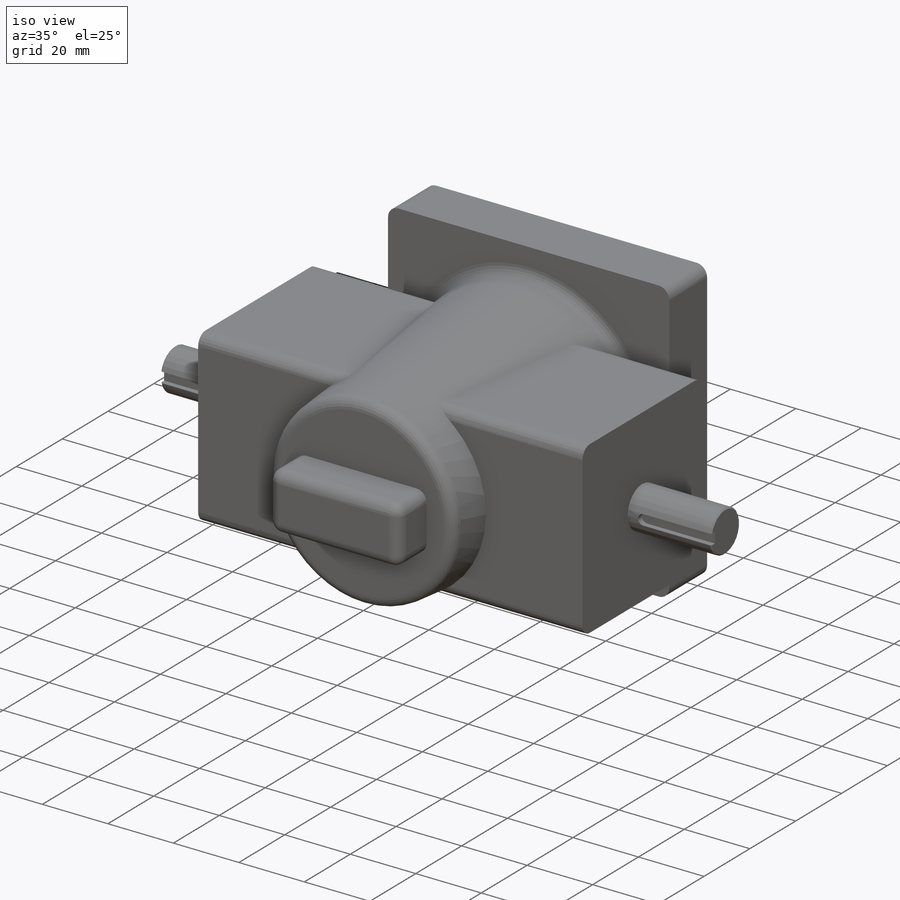
[diagram: iso view]
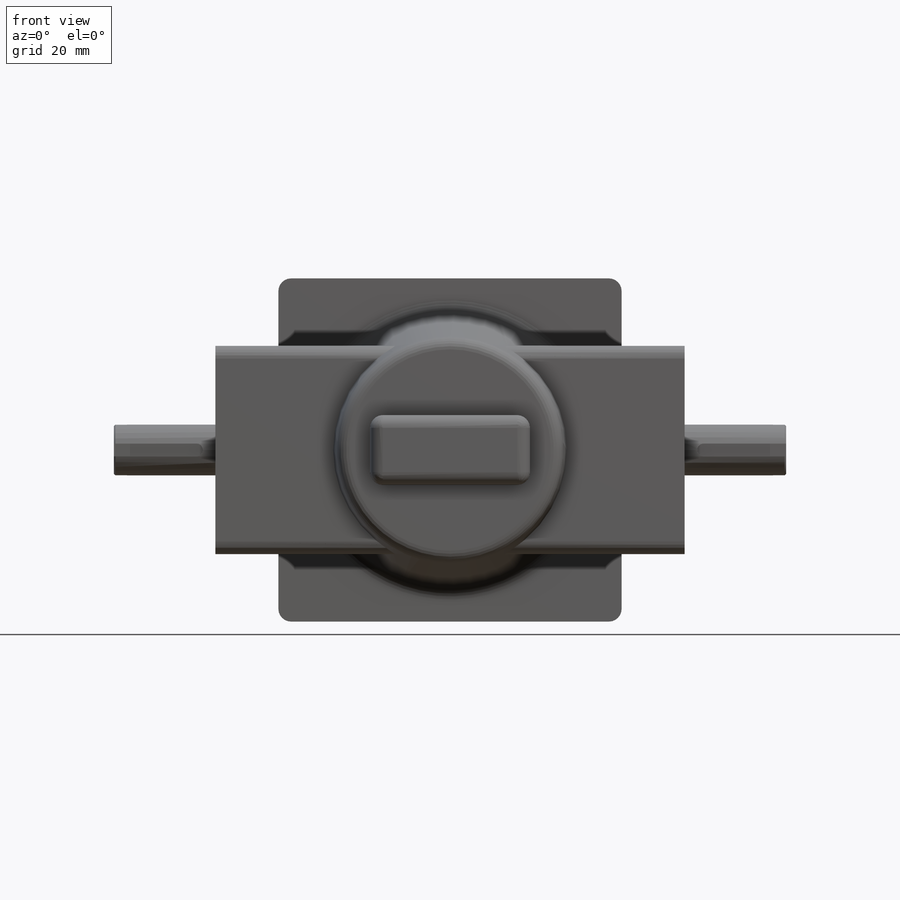
[diagram: front view]
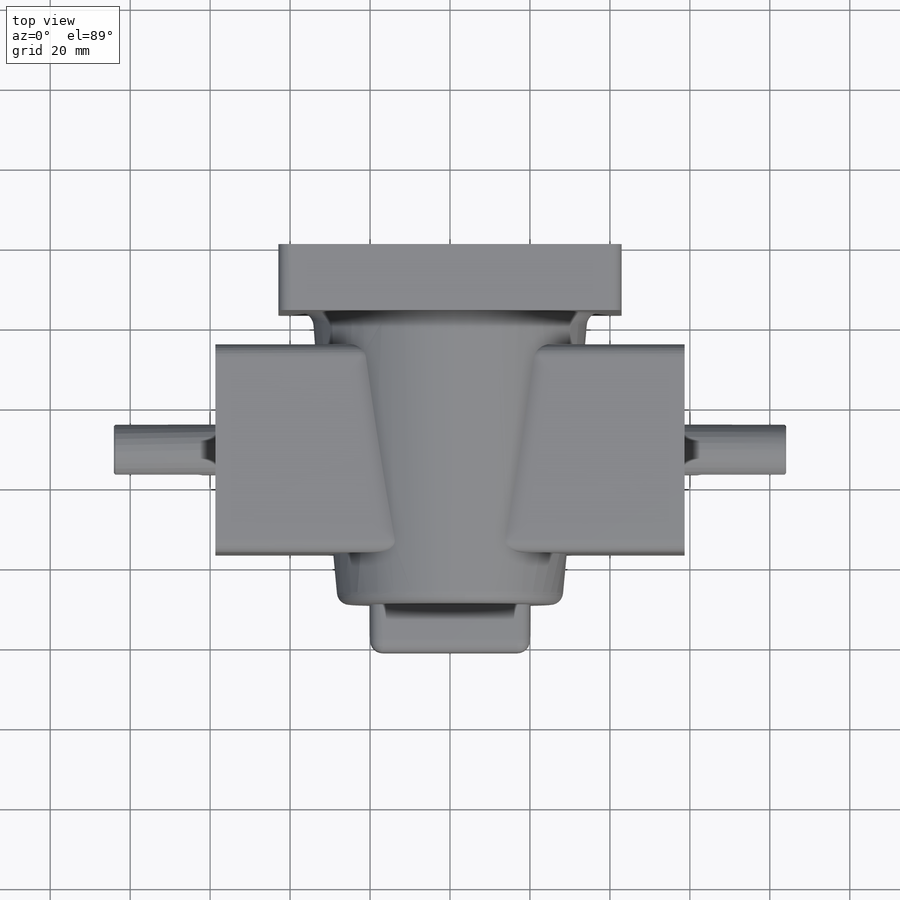
[diagram: top view]
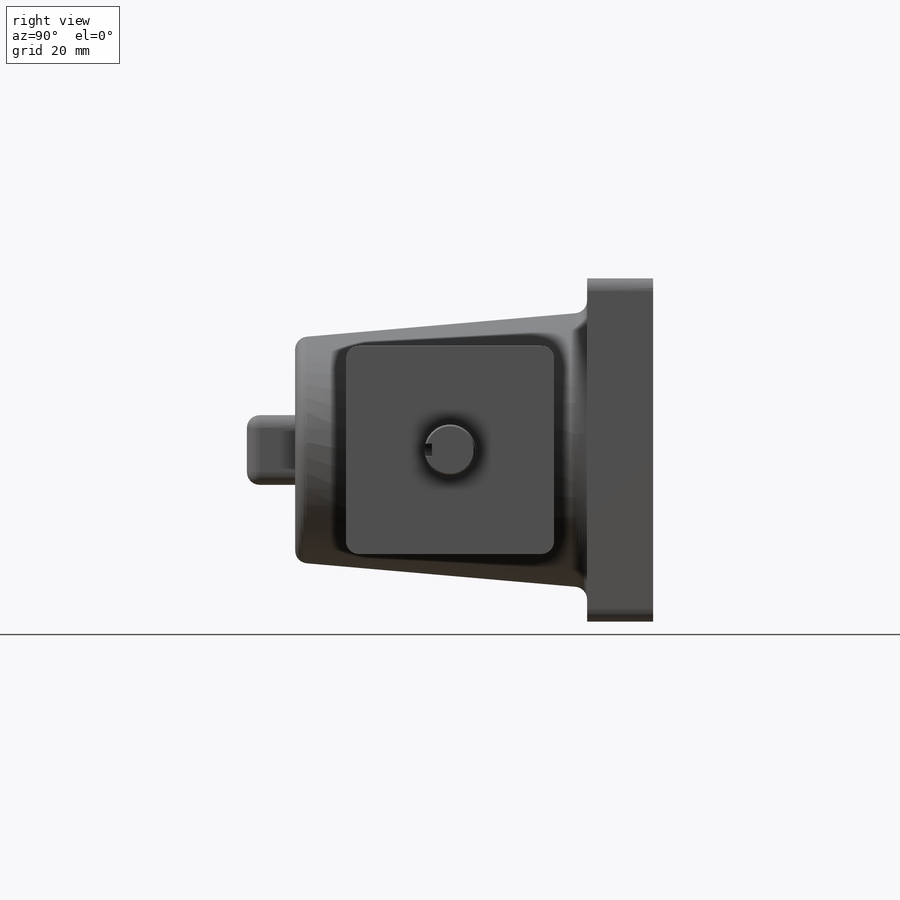
[diagram: right view]
SOLIDWORKS PART (.sldprt)
format: sldprt  version: not decoded by parser v0  size: 418,304 bytes
history: native  units: mm
features: sketch x6, extrude x5, plane x4, fillet x4, mirror x2, material x1, chamfer x1, cut_extrude x1, boolean_combine x1 (+16 scaffold rows collapsed)
feature tree (41):
  scaffold x16  (default folders/planes/origin — collapsed)
  material  "Material <not specified>"
  plane  "D"  Offset=50.8mm
  plane  "G"  Offset=101.6mm
  sketch  "Sketch1"  dims[D1=85.852mm]
  extrude  "C dim"  Depth=16.51mm
  plane  "F"  Offset=84.074mm
  sketch  "A"  dims[D1=12.7mm]
  extrude  "Shaft"  Depth=12.7mm
  plane  "E"  Offset=25.4mm
  sketch  "Sketch3"  dims[D1=12.7mm]
  extrude  "Boss-Extrude3"  [1 undecoded]
  mirror  "Mirror2"
  fillet  "Fillet1"  Radius=3.175mm
  fillet  "Fillet4"  Radius=3.175mm
  sketch  "Sketch4"
  extrude  "Boss-Extrude4"  Depth=12.7mm
  fillet  "Fillet2"  Radius=3.175mm
  sketch  "Sketch5"  dims[D1=2.54mm]
  extrude  "Boss-Extrude5"  [1 undecoded]
  chamfer  "Chamfer1"  Distance=0.381mm Angle=45deg
  fillet  "Fillet3"  Radius=3.175mm
  sketch  "Sketch6"  dims[D1=3.175mm D2=~1.588383mm]
  cut_extrude  "Cut-Extrude1"  Depth=4.572mm
  mirror  "Mirror6"
  boolean_combine  "Combine1"
decode coverage: 14 of 20 modeling features carry decoded parameters
note: ~ marks probable driven/reference dimensions
note: 2 parameter values undecoded
note: suppression state not decoded; provenance and decode notes live in map.json
